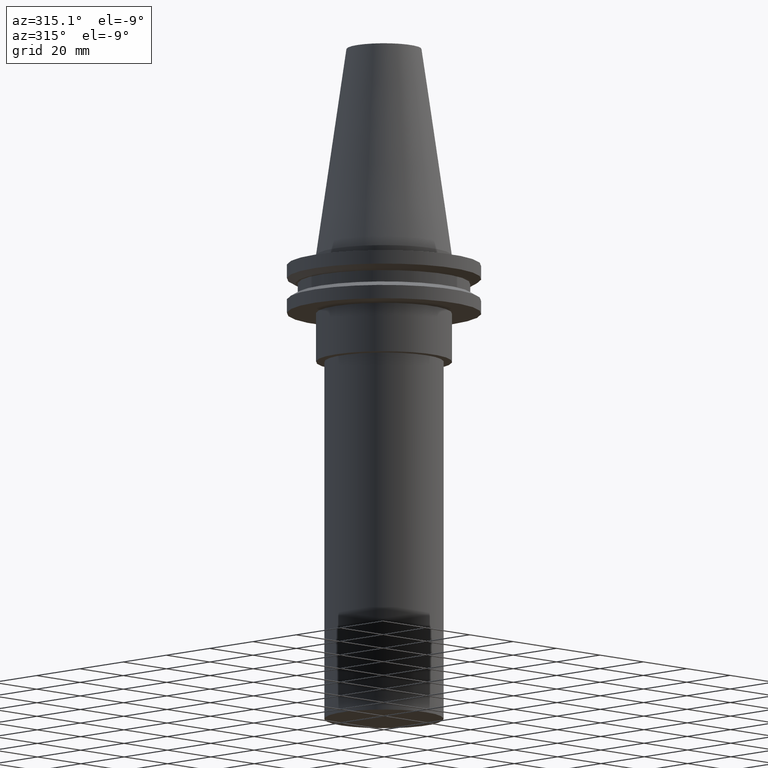
[diagram: clean part render]
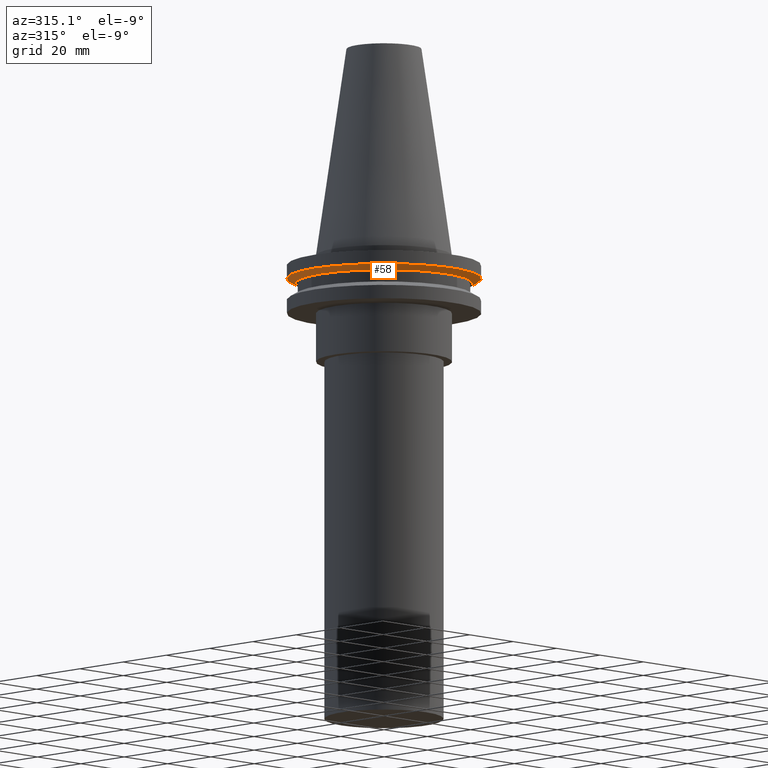
[diagram: same view with one face highlighted and labeled with its STEP entity id]
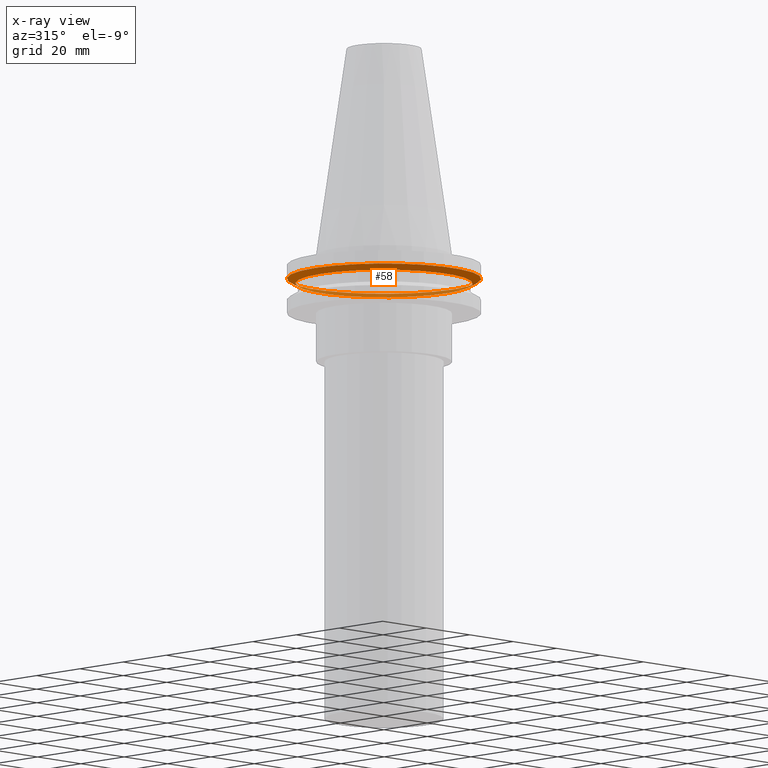
[diagram: x-ray of the same camera — body ghosted, the highlighted face saturated]
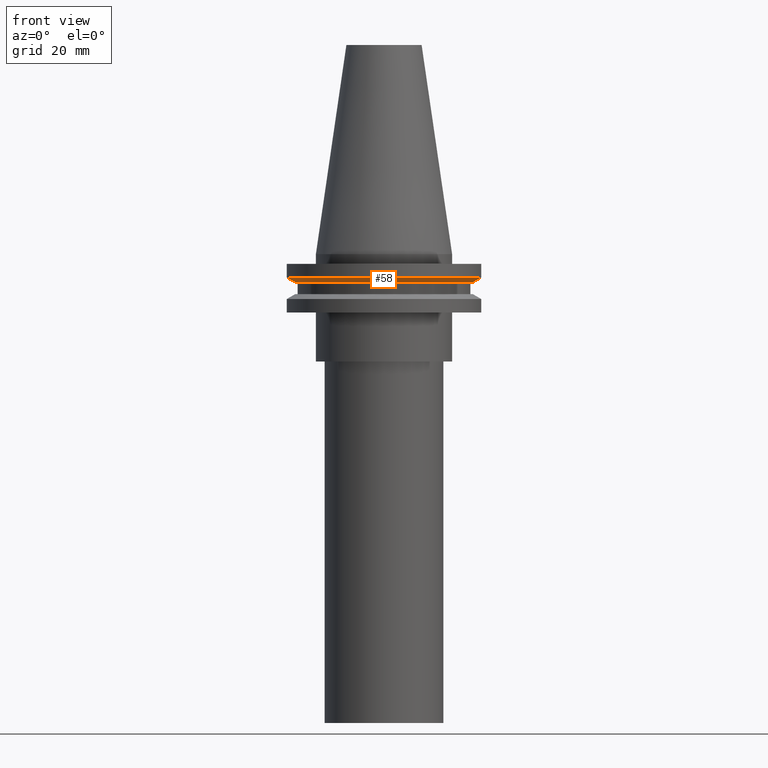
[diagram: same view with one face highlighted and labeled with its STEP entity id]
A machine part, auxiliary view. The second image highlights one B-rep face of the part: STEP entity #58.
The next image is the same camera in x-ray: the body ghosted, the highlighted face saturated — about 28% of this face is hidden behind the body in this view.
A second angle (front view) of the same face is appended — the face is thin or edge-on in the first view.
In plain terms, the highlighted conical surface has half-angle 60 deg.
Its self-contained STEP definition (entity closure, byte-faithful):
#10 = CARTESIAN_POINT ( 'NONE',  ( 0.000000000000000000, 0.000000000000000000, -9.205000000000005400 ) ) ;
#13 = DIRECTION ( 'NONE',  ( -0.000000000000000000, -0.000000000000000000, 1.000000000000000000 ) ) ;
#16 = VERTEX_POINT ( 'NONE', #247 ) ;
#21 = EDGE_CURVE ( 'NONE', #46, #46, #329, .T. ) ;
#35 = ORIENTED_EDGE ( 'NONE', *, *, #345, .T. ) ;
#44 = AXIS2_PLACEMENT_3D ( 'NONE', #234, #389, #269 ) ;
#46 = VERTEX_POINT ( 'NONE', #103 ) ;
#58 = ADVANCED_FACE ( 'NONE', ( #395, #286 ), #73, .T. ) ;
#73 = CONICAL_SURFACE ( 'NONE', #277, 28.97919780457007732, 1.047197551196598297 ) ;
#75 = CIRCLE ( 'NONE', #297, 28.97919780457007732 ) ;
#103 = CARTESIAN_POINT ( 'NONE',  ( 31.75000000000000000, 0.000000000000000000, -7.605276606597335842 ) ) ;
#117 = CARTESIAN_POINT ( 'NONE',  ( 0.000000000000000000, 0.000000000000000000, -9.205000000000005400 ) ) ;
#121 = EDGE_LOOP ( 'NONE', ( #35 ) ) ;
#132 = EDGE_LOOP ( 'NONE', ( #313 ) ) ;
#219 = DIRECTION ( 'NONE',  ( 1.000000000000000000, 0.000000000000000000, 0.000000000000000000 ) ) ;
#234 = CARTESIAN_POINT ( 'NONE',  ( 0.000000000000000000, 0.000000000000000000, -7.605276606597335842 ) ) ;
#247 = CARTESIAN_POINT ( 'NONE',  ( 28.97919780457007732, 0.000000000000000000, -9.205000000000005400 ) ) ;
#269 = DIRECTION ( 'NONE',  ( 1.000000000000000000, 0.000000000000000000, 0.000000000000000000 ) ) ;
#277 = AXIS2_PLACEMENT_3D ( 'NONE', #117, #362, #295 ) ;
#286 = FACE_BOUND ( 'NONE', #121, .T. ) ;
#295 = DIRECTION ( 'NONE',  ( 1.000000000000000000, 0.000000000000000000, 0.000000000000000000 ) ) ;
#297 = AXIS2_PLACEMENT_3D ( 'NONE', #10, #13, #219 ) ;
#313 = ORIENTED_EDGE ( 'NONE', *, *, #21, .F. ) ;
#329 = CIRCLE ( 'NONE', #44, 31.75000000000000000 ) ;
#345 = EDGE_CURVE ( 'NONE', #16, #16, #75, .T. ) ;
#362 = DIRECTION ( 'NONE',  ( -0.000000000000000000, -0.000000000000000000, 1.000000000000000000 ) ) ;
#389 = DIRECTION ( 'NONE',  ( -0.000000000000000000, -0.000000000000000000, 1.000000000000000000 ) ) ;
#395 = FACE_OUTER_BOUND ( 'NONE', #132, .T. ) ;